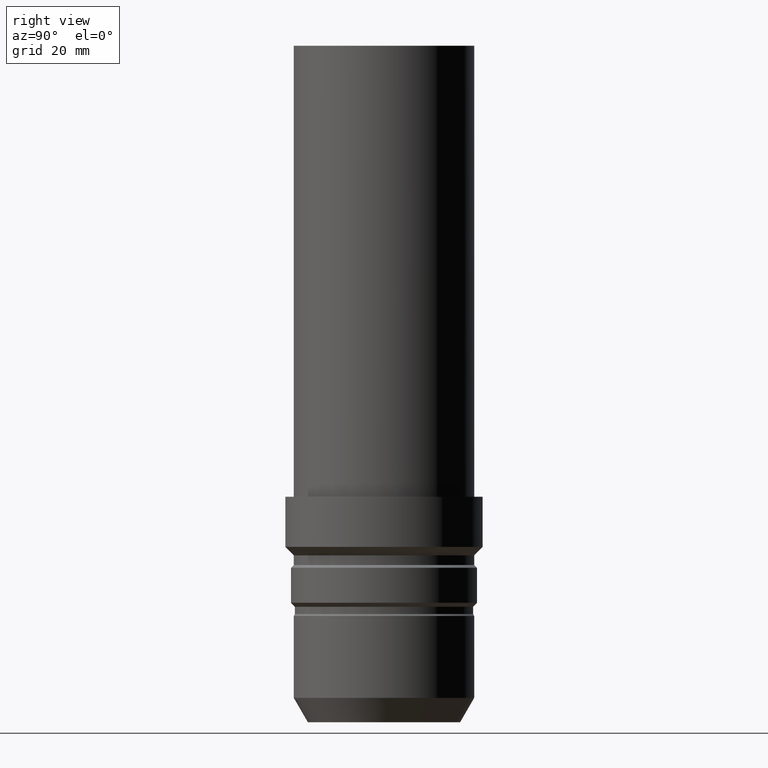
[diagram: clean part render]
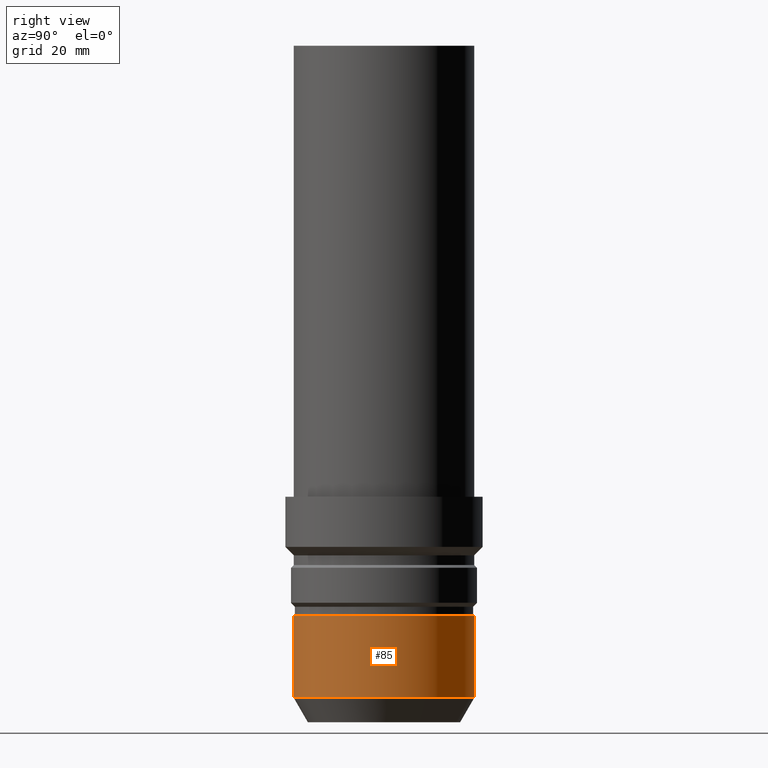
[diagram: same view with one face highlighted and labeled with its STEP entity id]
A machine part, right view. The second image highlights one B-rep face of the part: STEP entity #85.
In plain terms, the highlighted cylindrical surface (bore or boss wall) has radius 16 mm, axis along (0, -0, -1).
Its self-contained STEP definition (entity closure, byte-faithful):
#52=EDGE_CURVE('Unnamed[1]',#139,#139,#140,.T.);
#80=EDGE_CURVE('Unnamed[1]',#182,#182,#183,.T.);
#85=ADVANCED_FACE('Unnamed[1]',(#189,#190),#191,.T.);
#139=VERTEX_POINT('',#256);
#140=CIRCLE('',#257,15.9999999999999);
#182=VERTEX_POINT('',#309);
#183=CIRCLE('',#310,16.0);
#189=FACE_BOUND('',#318,.T.);
#190=FACE_BOUND('',#319,.T.);
#191=CYLINDRICAL_SURFACE('',#320,16.0);
#256=CARTESIAN_POINT('',(-1.15444942240699E-015,16.0,18.8535898384868));
#257=AXIS2_PLACEMENT_3D('',#392,#393,#394);
#309=CARTESIAN_POINT('',(-2.65143809681213E-016,16.0,4.33012701892198));
#310=AXIS2_PLACEMENT_3D('',#438,#439,#440);
#318=EDGE_LOOP('',(#445));
#319=EDGE_LOOP('',(#446));
#320=AXIS2_PLACEMENT_3D('',#447,#448,#449);
#392=CARTESIAN_POINT('',(-1.15444942240699E-015,3.5027390540255E-014,18.8535898384868));
#393=DIRECTION('',(6.12323399573676E-017,-1.85786318893773E-015,-1.0));
#394=DIRECTION('',(1.08934157648545E-031,1.0,-1.85786318893773E-015));
#438=CARTESIAN_POINT('',(-2.65143809681215E-016,8.04478359187988E-015,4.33012701892201));
#439=DIRECTION('',(6.12323399573677E-017,-1.85786318893773E-015,-1.0));
#440=DIRECTION('',(1.08934157648545E-031,1.0,-1.85786318893773E-015));
#445=ORIENTED_EDGE('',*,*,#80,.F.);
#446=ORIENTED_EDGE('',*,*,#52,.T.);
#447=CARTESIAN_POINT('',(-7.09796616044104E-016,2.15360870660674E-014,11.5918584287044));
#448=DIRECTION('',(6.12323399573677E-017,-1.85786318893773E-015,-1.0));
#449=DIRECTION('',(1.08934157648545E-031,1.0,-1.85786318893773E-015));